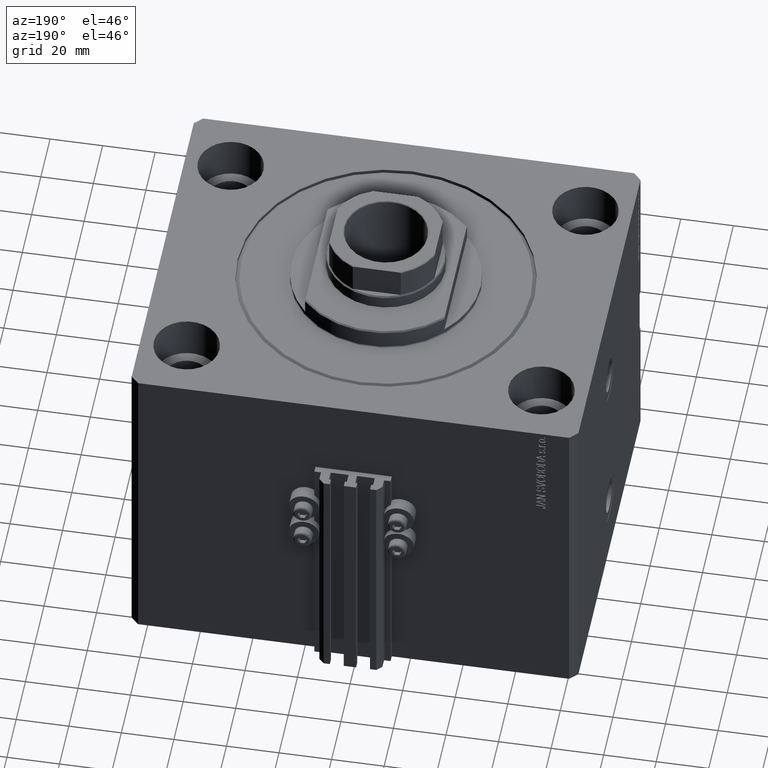
[diagram: clean part render]
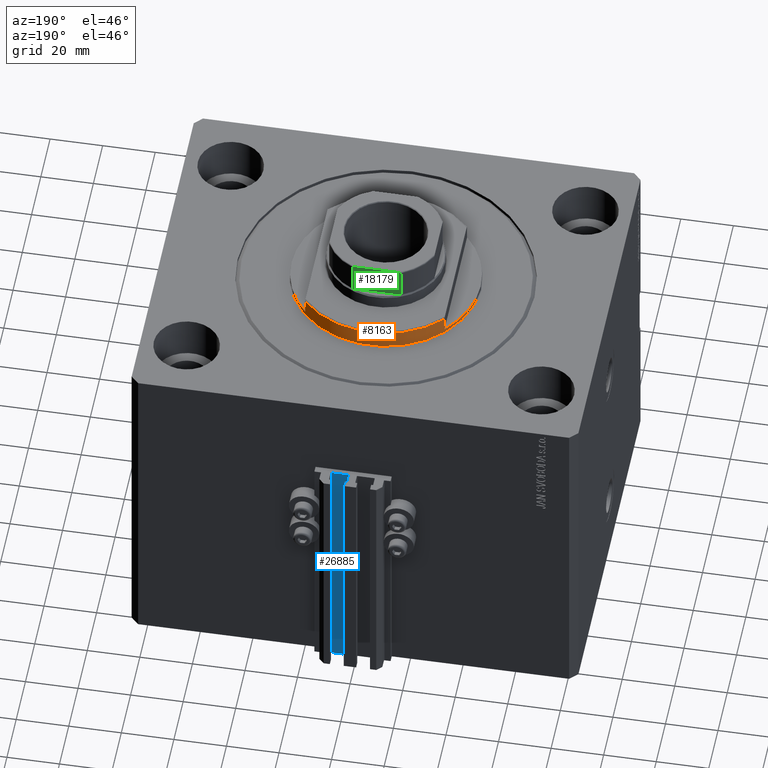
[diagram: same view with three faces highlighted in distinct colors, each labeled with its STEP entity id]
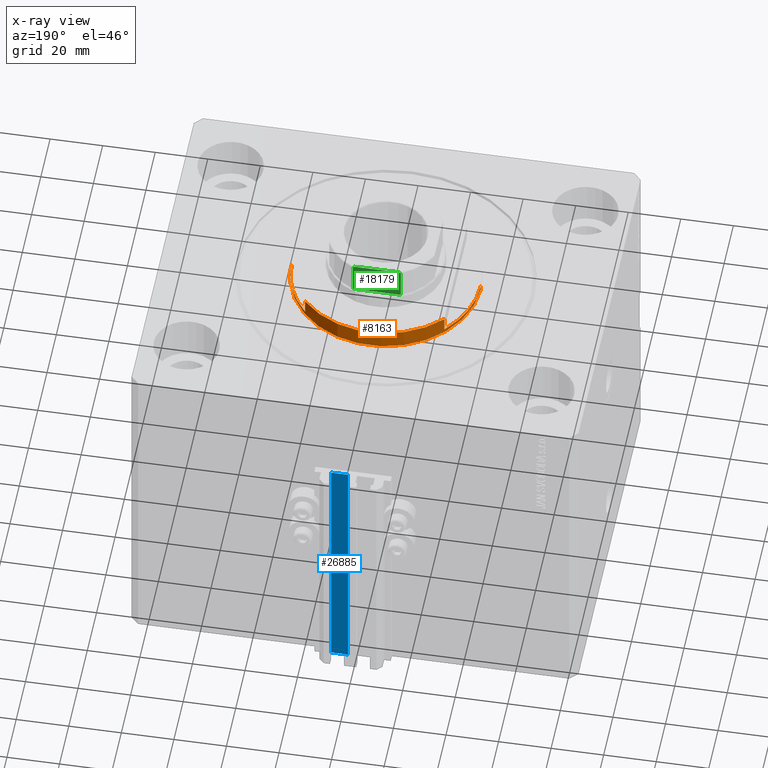
[diagram: x-ray of the same camera — body ghosted, the three highlighted faces saturated]
A machine part, auxiliary view with three faces highlighted in distinct colors.
The next image is the same camera in x-ray (body ghosted, the three faces saturated) — at least one of them is partly hidden behind the body in this view.
Their STEP definitions:

[orange] entity #8163 — the highlighted cylindrical surface (partial cylindrical patch) has radius 36 mm, axis along (0, 0, -1).
#1510 = DIRECTION ( 'NONE',  ( 0.000000000000000000, 0.000000000000000000, -1.000000000000000000 ) ) ;
#1786 = LINE ( 'NONE', #44106, #47203 ) ;
#1855 = AXIS2_PLACEMENT_3D ( 'NONE', #17392, #43161, #24334 ) ;
#2258 = CIRCLE ( 'NONE', #29106, 36.00000000000000000 ) ;
#3898 = DIRECTION ( 'NONE',  ( -1.000000000000000000, 0.000000000000000000, 0.000000000000000000 ) ) ;
#3996 = EDGE_CURVE ( 'NONE', #24301, #34687, #37127, .T. ) ;
#5760 = ORIENTED_EDGE ( 'NONE', *, *, #40362, .F. ) ;
#7465 = AXIS2_PLACEMENT_3D ( 'NONE', #32966, #14872, #21799 ) ;
#8079 = EDGE_CURVE ( 'NONE', #11620, #37922, #48496, .T. ) ;
#8088 = CARTESIAN_POINT ( 'NONE',  ( 0.000000000000000000, 0.000000000000000000, -7.499999999999965361 ) ) ;
#8163 = ADVANCED_FACE ( 'NONE', ( #38585 ), #8852, .T. ) ;
#8194 = CARTESIAN_POINT ( 'NONE',  ( 0.000000000000000000, 0.000000000000000000, -2.000000000000000000 ) ) ;
#8852 = CYLINDRICAL_SURFACE ( 'NONE', #9832, 36.00000000000000000 ) ;
#9293 = VERTEX_POINT ( 'NONE', #14925 ) ;
#9832 = AXIS2_PLACEMENT_3D ( 'NONE', #20722, #17017, #46233 ) ;
#11344 = DIRECTION ( 'NONE',  ( -0.000000000000000000, -0.000000000000000000, 1.000000000000000000 ) ) ;
#11567 = EDGE_CURVE ( 'NONE', #45153, #25748, #1786, .T. ) ;
#11620 = VERTEX_POINT ( 'NONE', #18840 ) ;
#11630 = EDGE_CURVE ( 'NONE', #9293, #31982, #14635, .T. ) ;
#12408 = ORIENTED_EDGE ( 'NONE', *, *, #8079, .T. ) ;
#13405 = EDGE_CURVE ( 'NONE', #11620, #34687, #2258, .T. ) ;
#14386 = DIRECTION ( 'NONE',  ( -0.000000000000000000, -0.000000000000000000, 1.000000000000000000 ) ) ;
#14635 = LINE ( 'NONE', #48804, #29044 ) ;
#14872 = DIRECTION ( 'NONE',  ( 0.000000000000000000, 0.000000000000000000, -1.000000000000000000 ) ) ;
#14925 = CARTESIAN_POINT ( 'NONE',  ( 26.50000000000000000, 24.36698586202241046, -7.499999999999968026 ) ) ;
#17017 = DIRECTION ( 'NONE',  ( -0.000000000000000000, -0.000000000000000000, 1.000000000000000000 ) ) ;
#17392 = CARTESIAN_POINT ( 'NONE',  ( 0.000000000000000000, 0.000000000000000000, -0.5000000000000004441 ) ) ;
#18840 = CARTESIAN_POINT ( 'NONE',  ( -36.00000000000000000, 4.408728476930470856E-15, -2.000000000000000000 ) ) ;
#20722 = CARTESIAN_POINT ( 'NONE',  ( 0.000000000000000000, 0.000000000000000000, -8.000000000000000000 ) ) ;
#20811 = ORIENTED_EDGE ( 'NONE', *, *, #24883, .T. ) ;
#21562 = VECTOR ( 'NONE', #11344, 1000.000000000000000 ) ;
#21799 = DIRECTION ( 'NONE',  ( -1.000000000000000000, 0.000000000000000000, 0.000000000000000000 ) ) ;
#21818 = CARTESIAN_POINT ( 'NONE',  ( 26.50000000000000000, 24.36698586202240691, -2.000000000000000000 ) ) ;
#23180 = CIRCLE ( 'NONE', #1855, 36.00000000000000000 ) ;
#24022 = DIRECTION ( 'NONE',  ( -1.000000000000000000, 0.000000000000000000, 0.000000000000000000 ) ) ;
#24024 = ORIENTED_EDGE ( 'NONE', *, *, #13405, .F. ) ;
#24174 = CARTESIAN_POINT ( 'NONE',  ( -26.50000000000000000, 24.36698586202240691, -2.000000000000000000 ) ) ;
#24301 = VERTEX_POINT ( 'NONE', #27564 ) ;
#24334 = DIRECTION ( 'NONE',  ( 1.000000000000000000, 0.000000000000000000, 0.000000000000000000 ) ) ;
#24883 = EDGE_CURVE ( 'NONE', #9293, #24301, #27785, .T. ) ;
#25748 = VERTEX_POINT ( 'NONE', #48412 ) ;
#25860 = CARTESIAN_POINT ( 'NONE',  ( 36.00000000000000000, 0.000000000000000000, -2.000000000000000000 ) ) ;
#27564 = CARTESIAN_POINT ( 'NONE',  ( -26.50000000000000000, 24.36698586202241046, -7.499999999999968026 ) ) ;
#27785 = CIRCLE ( 'NONE', #31758, 36.00000000000000000 ) ;
#28800 = CIRCLE ( 'NONE', #7465, 36.00000000000000000 ) ;
#28899 = EDGE_CURVE ( 'NONE', #37922, #25748, #23180, .T. ) ;
#29044 = VECTOR ( 'NONE', #14386, 1000.000000000000000 ) ;
#29106 = AXIS2_PLACEMENT_3D ( 'NONE', #8194, #1510, #24022 ) ;
#29688 = CARTESIAN_POINT ( 'NONE',  ( -36.00000000000000000, 4.408728476930470856E-15, -8.000000000000000000 ) ) ;
#29882 = CARTESIAN_POINT ( 'NONE',  ( -36.00000000000000000, 4.408728476930470856E-15, -0.5000000000000004441 ) ) ;
#31758 = AXIS2_PLACEMENT_3D ( 'NONE', #8088, #37831, #3898 ) ;
#31982 = VERTEX_POINT ( 'NONE', #21818 ) ;
#32006 = VECTOR ( 'NONE', #32427, 1000.000000000000000 ) ;
#32427 = DIRECTION ( 'NONE',  ( -0.000000000000000000, -0.000000000000000000, 1.000000000000000000 ) ) ;
#32966 = CARTESIAN_POINT ( 'NONE',  ( 0.000000000000000000, 0.000000000000000000, -2.000000000000000000 ) ) ;
#33848 = EDGE_LOOP ( 'NONE', ( #24024, #12408, #43522, #44682, #5760, #46054, #20811, #38139 ) ) ;
#34687 = VERTEX_POINT ( 'NONE', #24174 ) ;
#35961 = DIRECTION ( 'NONE',  ( -0.000000000000000000, -0.000000000000000000, 1.000000000000000000 ) ) ;
#37127 = LINE ( 'NONE', #40834, #21562 ) ;
#37831 = DIRECTION ( 'NONE',  ( 0.000000000000000000, 0.000000000000000000, 1.000000000000000000 ) ) ;
#37922 = VERTEX_POINT ( 'NONE', #29882 ) ;
#38139 = ORIENTED_EDGE ( 'NONE', *, *, #3996, .T. ) ;
#38585 = FACE_OUTER_BOUND ( 'NONE', #33848, .T. ) ;
#40362 = EDGE_CURVE ( 'NONE', #31982, #45153, #28800, .T. ) ;
#40834 = CARTESIAN_POINT ( 'NONE',  ( -26.50000000000000000, 24.36698586202240691, -8.000000000000000000 ) ) ;
#43161 = DIRECTION ( 'NONE',  ( -0.000000000000000000, -0.000000000000000000, -1.000000000000000000 ) ) ;
#43522 = ORIENTED_EDGE ( 'NONE', *, *, #28899, .T. ) ;
#44106 = CARTESIAN_POINT ( 'NONE',  ( 36.00000000000000000, 0.000000000000000000, -8.000000000000000000 ) ) ;
#44682 = ORIENTED_EDGE ( 'NONE', *, *, #11567, .F. ) ;
#45153 = VERTEX_POINT ( 'NONE', #25860 ) ;
#46054 = ORIENTED_EDGE ( 'NONE', *, *, #11630, .F. ) ;
#46233 = DIRECTION ( 'NONE',  ( 1.000000000000000000, 0.000000000000000000, 0.000000000000000000 ) ) ;
#47203 = VECTOR ( 'NONE', #35961, 1000.000000000000000 ) ;
#48412 = CARTESIAN_POINT ( 'NONE',  ( 36.00000000000000000, 0.000000000000000000, -0.5000000000000004441 ) ) ;
#48496 = LINE ( 'NONE', #29688, #32006 ) ;
#48804 = CARTESIAN_POINT ( 'NONE',  ( 26.50000000000000000, 24.36698586202240691, -8.000000000000000000 ) ) ;

[blue] entity #26885 — the highlighted planar face has unit normal (0, 1, 0).
#472 = LINE ( 'NONE', #19008, #45319 ) ;
#566 = CARTESIAN_POINT ( 'NONE',  ( 1.800000000000000933, 72.00000000000001421, -33.00000000000000000 ) ) ;
#1352 = EDGE_CURVE ( 'NONE', #46480, #5980, #30376, .T. ) ;
#3077 = PLANE ( 'NONE',  #19165 ) ;
#5980 = VERTEX_POINT ( 'NONE', #566 ) ;
#6510 = EDGE_CURVE ( 'NONE', #31556, #5980, #40222, .T. ) ;
#10176 = CARTESIAN_POINT ( 'NONE',  ( 8.199999999999999289, 72.00000000000001421, -130.0000000000000000 ) ) ;
#10986 = DIRECTION ( 'NONE',  ( 0.000000000000000000, 0.000000000000000000, 1.000000000000000000 ) ) ;
#11570 = DIRECTION ( 'NONE',  ( -1.000000000000000000, 0.000000000000000000, 0.000000000000000000 ) ) ;
#18134 = CARTESIAN_POINT ( 'NONE',  ( 8.199999999999999289, 72.00000000000001421, -33.00000000000000000 ) ) ;
#19008 = CARTESIAN_POINT ( 'NONE',  ( 8.199999999999999289, 72.00000000000001421, -130.0000000000000000 ) ) ;
#19165 = AXIS2_PLACEMENT_3D ( 'NONE', #34006, #30538, #45631 ) ;
#19923 = CARTESIAN_POINT ( 'NONE',  ( 1.800000000000000933, 72.00000000000001421, -130.0000000000000000 ) ) ;
#23087 = FACE_OUTER_BOUND ( 'NONE', #30843, .T. ) ;
#23691 = DIRECTION ( 'NONE',  ( -1.000000000000000000, 0.000000000000000000, 0.000000000000000000 ) ) ;
#25031 = LINE ( 'NONE', #10176, #35935 ) ;
#26076 = CARTESIAN_POINT ( 'NONE',  ( 8.199999999999999289, 72.00000000000001421, -130.0000000000000000 ) ) ;
#26885 = ADVANCED_FACE ( 'NONE', ( #23087 ), #3077, .T. ) ;
#27503 = EDGE_CURVE ( 'NONE', #35891, #31556, #472, .T. ) ;
#28567 = VECTOR ( 'NONE', #11570, 1000.000000000000000 ) ;
#30376 = LINE ( 'NONE', #45473, #28567 ) ;
#30538 = DIRECTION ( 'NONE',  ( 0.000000000000000000, 1.000000000000000000, -0.000000000000000000 ) ) ;
#30843 = EDGE_LOOP ( 'NONE', ( #47643, #45676, #41591, #32840 ) ) ;
#30963 = EDGE_CURVE ( 'NONE', #35891, #46480, #25031, .T. ) ;
#31556 = VERTEX_POINT ( 'NONE', #19923 ) ;
#32540 = CARTESIAN_POINT ( 'NONE',  ( 1.800000000000000933, 72.00000000000001421, -130.0000000000000000 ) ) ;
#32840 = ORIENTED_EDGE ( 'NONE', *, *, #6510, .T. ) ;
#34006 = CARTESIAN_POINT ( 'NONE',  ( 8.199999999999999289, 72.00000000000001421, -130.0000000000000000 ) ) ;
#35891 = VERTEX_POINT ( 'NONE', #26076 ) ;
#35935 = VECTOR ( 'NONE', #40154, 1000.000000000000000 ) ;
#40154 = DIRECTION ( 'NONE',  ( 0.000000000000000000, 0.000000000000000000, 1.000000000000000000 ) ) ;
#40222 = LINE ( 'NONE', #32540, #45359 ) ;
#41591 = ORIENTED_EDGE ( 'NONE', *, *, #27503, .T. ) ;
#45319 = VECTOR ( 'NONE', #23691, 1000.000000000000000 ) ;
#45359 = VECTOR ( 'NONE', #10986, 1000.000000000000000 ) ;
#45473 = CARTESIAN_POINT ( 'NONE',  ( 8.199999999999999289, 72.00000000000001421, -33.00000000000000000 ) ) ;
#45631 = DIRECTION ( 'NONE',  ( 0.000000000000000000, 0.000000000000000000, 1.000000000000000000 ) ) ;
#45676 = ORIENTED_EDGE ( 'NONE', *, *, #30963, .F. ) ;
#46480 = VERTEX_POINT ( 'NONE', #18134 ) ;
#47643 = ORIENTED_EDGE ( 'NONE', *, *, #1352, .F. ) ;

[green] entity #18179 — the highlighted planar face has unit normal (0, -1, 0).
#87 = CARTESIAN_POINT ( 'NONE',  ( -8.134263528852956782, 20.00000000000000355, 126.1000000000000512 ) ) ;
#128 = CARTESIAN_POINT ( 'NONE',  ( 9.165151389911676105, 20.00000000000000000, 114.1000000000001364 ) ) ;
#548 = CARTESIAN_POINT ( 'NONE',  ( -7.889866919029745240, 20.00000000000000000, 126.1000000000000227 ) ) ;
#1445 = CARTESIAN_POINT ( 'NONE',  ( 8.849170428565226842, 20.00000000000000000, 125.9446655850051968 ) ) ;
#1889 = FACE_OUTER_BOUND ( 'NONE', #14661, .T. ) ;
#2114 = DIRECTION ( 'NONE',  ( -0.000000000000000000, -0.000000000000000000, 1.000000000000000000 ) ) ;
#2263 = LINE ( 'NONE', #24774, #19452 ) ;
#3055 = CARTESIAN_POINT ( 'NONE',  ( -9.055524318101884518, 20.00000000000000355, 125.8141986763098004 ) ) ;
#3300 = B_SPLINE_CURVE_WITH_KNOTS ( 'NONE', 3,
 ( #31152, #12581, #39328, #27175, #1445, #42295, #38835, #8375, #23467, #31402 ),
 .UNSPECIFIED., .F., .F.,
 ( 4, 2, 2, 2, 4 ),
 ( 1.734723475976807094E-18, 0.0007281986681936633739, 0.001092298002290502000, 0.001274347669338919253, 0.001456397336387336289 ),
 .UNSPECIFIED. ) ;
#3344 = VERTEX_POINT ( 'NONE', #12802 ) ;
#4146 = CARTESIAN_POINT ( 'NONE',  ( -20.00000000000000355, 20.00000000000000000, 126.1000000000000227 ) ) ;
#4632 = LINE ( 'NONE', #4146, #39992 ) ;
#6842 = ORIENTED_EDGE ( 'NONE', *, *, #37092, .F. ) ;
#7484 = CARTESIAN_POINT ( 'NONE',  ( -7.889866919029745240, 20.00000000000000000, 126.1000000000000227 ) ) ;
#8375 = CARTESIAN_POINT ( 'NONE',  ( 9.135966866521640029, 19.99999999999999645, 125.7203262903150716 ) ) ;
#8709 = ORIENTED_EDGE ( 'NONE', *, *, #37805, .T. ) ;
#9292 = LINE ( 'NONE', #34621, #10726 ) ;
#9570 = ORIENTED_EDGE ( 'NONE', *, *, #43932, .F. ) ;
#10726 = VECTOR ( 'NONE', #2114, 1000.000000000000000 ) ;
#11128 = CARTESIAN_POINT ( 'NONE',  ( -9.165151389911676105, 20.00000000000000000, 125.6000000000000227 ) ) ;
#11137 = LINE ( 'NONE', #26228, #35153 ) ;
#11199 = CARTESIAN_POINT ( 'NONE',  ( -9.135943898188770618, 20.00000000000000000, 125.7204496596643111 ) ) ;
#11946 = VERTEX_POINT ( 'NONE', #27365 ) ;
#12581 = CARTESIAN_POINT ( 'NONE',  ( 8.134318822980977970, 19.99999999999999645, 126.1000000000000512 ) ) ;
#12627 = VERTEX_POINT ( 'NONE', #548 ) ;
#12802 = CARTESIAN_POINT ( 'NONE',  ( 7.889866919029743464, 20.00000000000000000, 126.1000000000000227 ) ) ;
#13278 = DIRECTION ( 'NONE',  ( 0.000000000000000000, -0.000000000000000000, -1.000000000000000000 ) ) ;
#14661 = EDGE_LOOP ( 'NONE', ( #9570, #8709, #6842, #21836, #43870, #22404 ) ) ;
#15886 = CARTESIAN_POINT ( 'NONE',  ( -9.165151389911677882, 20.00000000000000000, 114.1000000000001364 ) ) ;
#17469 = CARTESIAN_POINT ( 'NONE',  ( -20.00000000000000355, 20.00000000000000000, 126.1000000000000227 ) ) ;
#18179 = ADVANCED_FACE ( 'NONE', ( #1889 ), #33083, .F. ) ;
#18632 = CARTESIAN_POINT ( 'NONE',  ( -9.165151389911676105, 20.00000000000000000, 125.6000000000000227 ) ) ;
#19452 = VECTOR ( 'NONE', #36194, 1000.000000000000000 ) ;
#21836 = ORIENTED_EDGE ( 'NONE', *, *, #30158, .T. ) ;
#21856 = CARTESIAN_POINT ( 'NONE',  ( -8.377106304411494619, 19.99999999999999645, 126.0787779673724884 ) ) ;
#22303 = VERTEX_POINT ( 'NONE', #128 ) ;
#22404 = ORIENTED_EDGE ( 'NONE', *, *, #42429, .T. ) ;
#23467 = CARTESIAN_POINT ( 'NONE',  ( 9.165151389911676105, 19.99999999999999645, 125.6622865831652831 ) ) ;
#24774 = CARTESIAN_POINT ( 'NONE',  ( -9.165151389911676105, 20.00000000000000000, -0.001000000000001000089 ) ) ;
#26228 = CARTESIAN_POINT ( 'NONE',  ( -20.00000000000000355, 20.00000000000000000, 114.1000000000000085 ) ) ;
#26537 = CARTESIAN_POINT ( 'NONE',  ( -8.731041210088298143, 20.00000000000000000, 125.9862065548025214 ) ) ;
#27175 = CARTESIAN_POINT ( 'NONE',  ( 8.731854386667052381, 20.00000000000000000, 125.9859761974169743 ) ) ;
#27365 = CARTESIAN_POINT ( 'NONE',  ( 9.165151389911676105, 20.00000000000000000, 125.6000000000000227 ) ) ;
#27937 = B_SPLINE_CURVE_WITH_KNOTS ( 'NONE', 3,
 ( #18632, #37950, #11199, #3055, #36983, #44633, #26537, #21856, #87, #7484 ),
 .UNSPECIFIED., .F., .F.,
 ( 4, 2, 2, 2, 4 ),
 ( 0.000000000000000000, 0.0001842078696388121408, 0.0003684157392776242815, 0.0007368314785552102907, 0.001473662957110382201 ),
 .UNSPECIFIED. ) ;
#30102 = AXIS2_PLACEMENT_3D ( 'NONE', #17469, #32099, #13278 ) ;
#30158 = EDGE_CURVE ( 'NONE', #22303, #42503, #11137, .T. ) ;
#31152 = CARTESIAN_POINT ( 'NONE',  ( 7.889866919029743464, 20.00000000000000000, 126.1000000000000227 ) ) ;
#31402 = CARTESIAN_POINT ( 'NONE',  ( 9.165151389911676105, 20.00000000000000000, 125.6000000000000227 ) ) ;
#32099 = DIRECTION ( 'NONE',  ( 0.000000000000000000, -1.000000000000000000, 0.000000000000000000 ) ) ;
#33083 = PLANE ( 'NONE',  #30102 ) ;
#34076 = EDGE_CURVE ( 'NONE', #42503, #48450, #2263, .T. ) ;
#34621 = CARTESIAN_POINT ( 'NONE',  ( 9.165151389911676105, 20.00000000000000000, -0.001000000000001000089 ) ) ;
#35153 = VECTOR ( 'NONE', #41352, 1000.000000000000000 ) ;
#36194 = DIRECTION ( 'NONE',  ( -0.000000000000000000, -0.000000000000000000, 1.000000000000000000 ) ) ;
#36983 = CARTESIAN_POINT ( 'NONE',  ( -9.005650948982575343, 20.00000000000000355, 125.8512182151569334 ) ) ;
#37092 = EDGE_CURVE ( 'NONE', #22303, #11946, #9292, .T. ) ;
#37805 = EDGE_CURVE ( 'NONE', #3344, #11946, #3300, .T. ) ;
#37950 = CARTESIAN_POINT ( 'NONE',  ( -9.165151389911674329, 19.99999999999999645, 125.6624095850606437 ) ) ;
#38835 = CARTESIAN_POINT ( 'NONE',  ( 9.056020599733276555, 20.00000000000000000, 125.8137161059354412 ) ) ;
#39328 = CARTESIAN_POINT ( 'NONE',  ( 8.376270842886095025, 20.00000000000000000, 126.0790317661354152 ) ) ;
#39992 = VECTOR ( 'NONE', #42263, 1000.000000000000000 ) ;
#41352 = DIRECTION ( 'NONE',  ( -1.000000000000000000, -0.000000000000000000, -0.000000000000000000 ) ) ;
#42263 = DIRECTION ( 'NONE',  ( -1.000000000000000000, -0.000000000000000000, -0.000000000000000000 ) ) ;
#42295 = CARTESIAN_POINT ( 'NONE',  ( 9.005944049512759619, 20.00000000000000000, 125.8509746237500622 ) ) ;
#42429 = EDGE_CURVE ( 'NONE', #48450, #12627, #27937, .T. ) ;
#42503 = VERTEX_POINT ( 'NONE', #15886 ) ;
#43870 = ORIENTED_EDGE ( 'NONE', *, *, #34076, .T. ) ;
#43932 = EDGE_CURVE ( 'NONE', #3344, #12627, #4632, .T. ) ;
#44633 = CARTESIAN_POINT ( 'NONE',  ( -8.847700323750238738, 20.00000000000000000, 125.9454059445000382 ) ) ;
#48450 = VERTEX_POINT ( 'NONE', #11128 ) ;